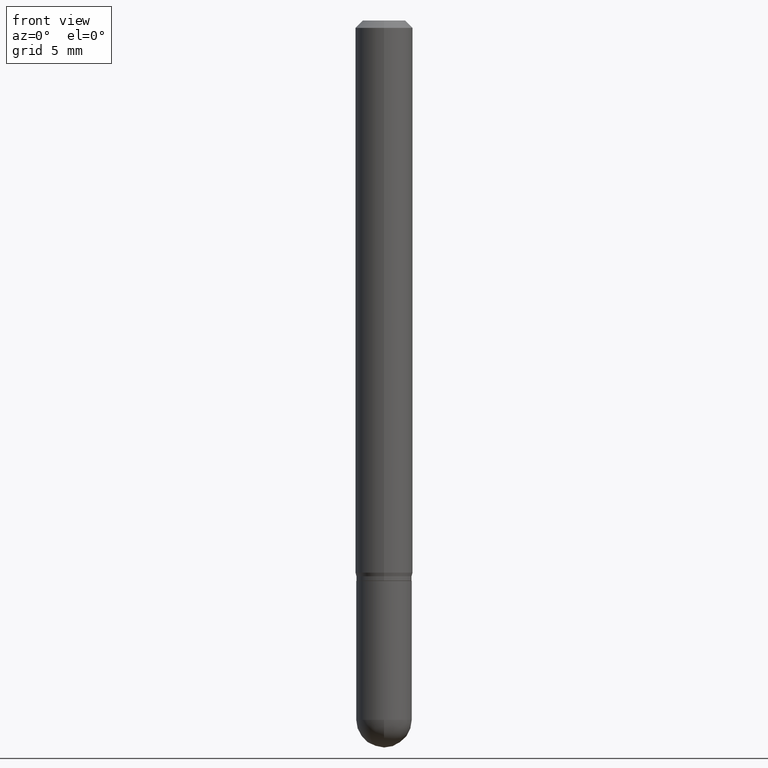
[diagram: clean part render]
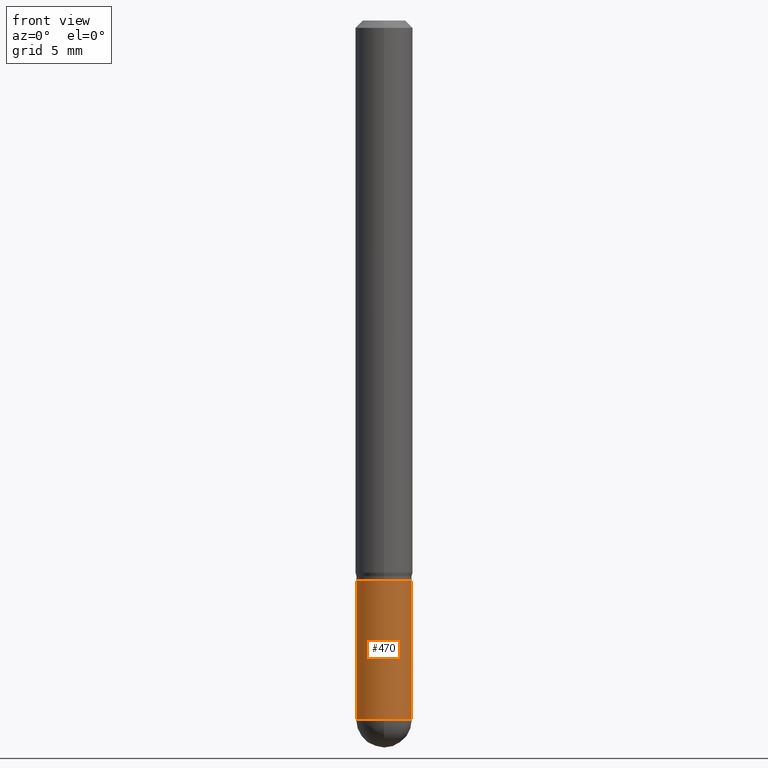
[diagram: same view with one face highlighted and labeled with its STEP entity id]
A machine part, front view. The second image highlights one B-rep face of the part: STEP entity #470.
In plain terms, the highlighted cylindrical surface (edge-blend (fillet) strip) has radius 1.4503 mm, axis along (-0, 0, 1).
Its self-contained STEP definition (entity closure, byte-faithful):
#14 = CARTESIAN_POINT ( 'NONE',  ( 3.519029612100411141E-29, -5.024241646595286064E-15, -1.438999999999999835 ) ) ;
#19 = ORIENTED_EDGE ( 'NONE', *, *, #94, .F. ) ;
#20 = VECTOR ( 'NONE', #431, 39.37007874015748143 ) ;
#25 = CARTESIAN_POINT ( 'NONE',  ( 0.05709999999999999798, -3.987271688958858118E-16, 2.784296938979478878E-30 ) ) ;
#37 = EDGE_CURVE ( 'NONE', #335, #48, #389, .T. ) ;
#45 = DIRECTION ( 'NONE',  ( 1.000000000000000000, -6.982962677686266711E-15, 4.876176775795935232E-29 ) ) ;
#47 = EDGE_LOOP ( 'NONE', ( #19, #473, #493, #129, #296 ) ) ;
#48 = VERTEX_POINT ( 'NONE', #77 ) ;
#73 = AXIS2_PLACEMENT_3D ( 'NONE', #14, #176, #229 ) ;
#74 = CARTESIAN_POINT ( 'NONE',  ( 3.519029612100411141E-29, -5.024241646595286064E-15, -1.438999999999999835 ) ) ;
#77 = CARTESIAN_POINT ( 'NONE',  ( -3.987271688958507568E-16, -0.05710000000000504256, -1.438999999999999613 ) ) ;
#87 = CARTESIAN_POINT ( 'NONE',  ( 0.05709999999999999798, -4.426500041385338787E-15, -1.153599999999999959 ) ) ;
#94 = EDGE_CURVE ( 'NONE', #335, #406, #118, .T. ) ;
#117 = CARTESIAN_POINT ( 'NONE',  ( 0.000000000000000000, 0.000000000000000000, 0.000000000000000000 ) ) ;
#118 = LINE ( 'NONE', #277, #415 ) ;
#121 = DIRECTION ( 'NONE',  ( -2.445468806185136877E-29, 3.491481338843145188E-15, 1.000000000000000000 ) ) ;
#123 = DIRECTION ( 'NONE',  ( 1.000000000000000000, -6.982962677686268288E-15, 0.000000000000000000 ) ) ;
#129 = ORIENTED_EDGE ( 'NONE', *, *, #461, .T. ) ;
#144 = EDGE_CURVE ( 'NONE', #48, #404, #427, .T. ) ;
#152 = CIRCLE ( 'NONE', #465, 0.05709999999999999798 ) ;
#176 = DIRECTION ( 'NONE',  ( -2.445468806185136597E-29, 3.491481338843145583E-15, 1.000000000000000000 ) ) ;
#207 = CARTESIAN_POINT ( 'NONE',  ( 2.821092814815173687E-29, -4.027772872489452384E-15, -1.153599999999999959 ) ) ;
#212 = CARTESIAN_POINT ( 'NONE',  ( -0.05709999999999999798, -4.120287357423351736E-15, -1.153599999999999959 ) ) ;
#216 = CYLINDRICAL_SURFACE ( 'NONE', #507, 0.05709999999999999798 ) ;
#229 = DIRECTION ( 'NONE',  ( 1.000000000000000000, -6.982962677686259611E-15, 0.000000000000000000 ) ) ;
#231 = LINE ( 'NONE', #25, #20 ) ;
#277 = CARTESIAN_POINT ( 'NONE',  ( -0.05709999999999999798, 4.057199021190171918E-16, -2.808711936535550940E-30 ) ) ;
#296 = ORIENTED_EDGE ( 'NONE', *, *, #402, .F. ) ;
#313 = DIRECTION ( 'NONE',  ( -2.445468806185136597E-29, 3.491481338843145583E-15, 1.000000000000000000 ) ) ;
#335 = VERTEX_POINT ( 'NONE', #401 ) ;
#336 = AXIS2_PLACEMENT_3D ( 'NONE', #74, #393, #347 ) ;
#347 = DIRECTION ( 'NONE',  ( 1.000000000000000000, -6.982962677686259611E-15, 0.000000000000000000 ) ) ;
#389 = CIRCLE ( 'NONE', #336, 0.05709999999999999798 ) ;
#393 = DIRECTION ( 'NONE',  ( -2.445468806185136597E-29, 3.491481338843145583E-15, 1.000000000000000000 ) ) ;
#401 = CARTESIAN_POINT ( 'NONE',  ( -0.05709999999999999798, -4.120287357423352525E-15, -1.438999999999999835 ) ) ;
#402 = EDGE_CURVE ( 'NONE', #406, #411, #152, .T. ) ;
#404 = VERTEX_POINT ( 'NONE', #442 ) ;
#405 = FACE_OUTER_BOUND ( 'NONE', #47, .T. ) ;
#406 = VERTEX_POINT ( 'NONE', #212 ) ;
#411 = VERTEX_POINT ( 'NONE', #87 ) ;
#415 = VECTOR ( 'NONE', #121, 39.37007874015748143 ) ;
#427 = CIRCLE ( 'NONE', #73, 0.05709999999999999798 ) ;
#431 = DIRECTION ( 'NONE',  ( -2.445468806185136877E-29, 3.491481338843145188E-15, 1.000000000000000000 ) ) ;
#442 = CARTESIAN_POINT ( 'NONE',  ( 0.05709999999999999798, -4.924734428438255627E-15, -1.438999999999999835 ) ) ;
#461 = EDGE_CURVE ( 'NONE', #404, #411, #231, .T. ) ;
#465 = AXIS2_PLACEMENT_3D ( 'NONE', #207, #478, #123 ) ;
#470 = ADVANCED_FACE ( 'NONE', ( #405 ), #216, .T. ) ;
#473 = ORIENTED_EDGE ( 'NONE', *, *, #37, .T. ) ;
#478 = DIRECTION ( 'NONE',  ( -2.445468806185136597E-29, 3.491481338843145583E-15, 1.000000000000000000 ) ) ;
#493 = ORIENTED_EDGE ( 'NONE', *, *, #144, .T. ) ;
#507 = AXIS2_PLACEMENT_3D ( 'NONE', #117, #313, #45 ) ;